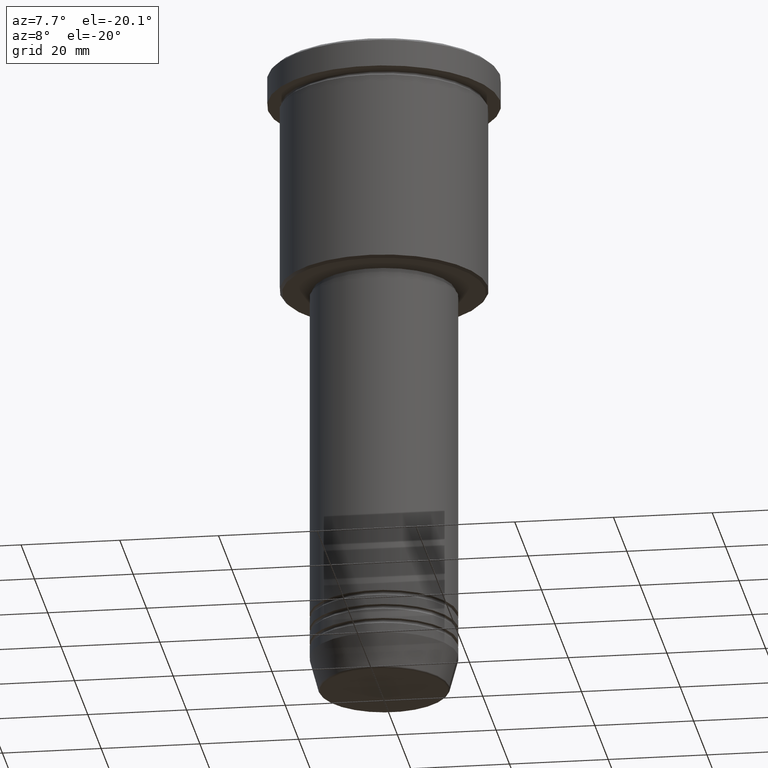
[diagram: clean part render]
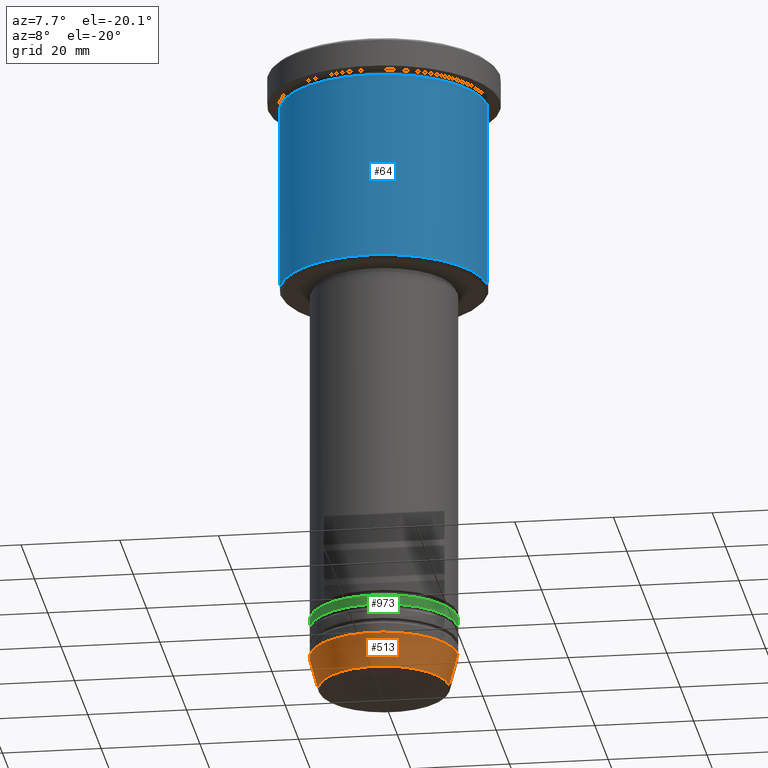
[diagram: same view with three faces highlighted in distinct colors, each labeled with its STEP entity id]
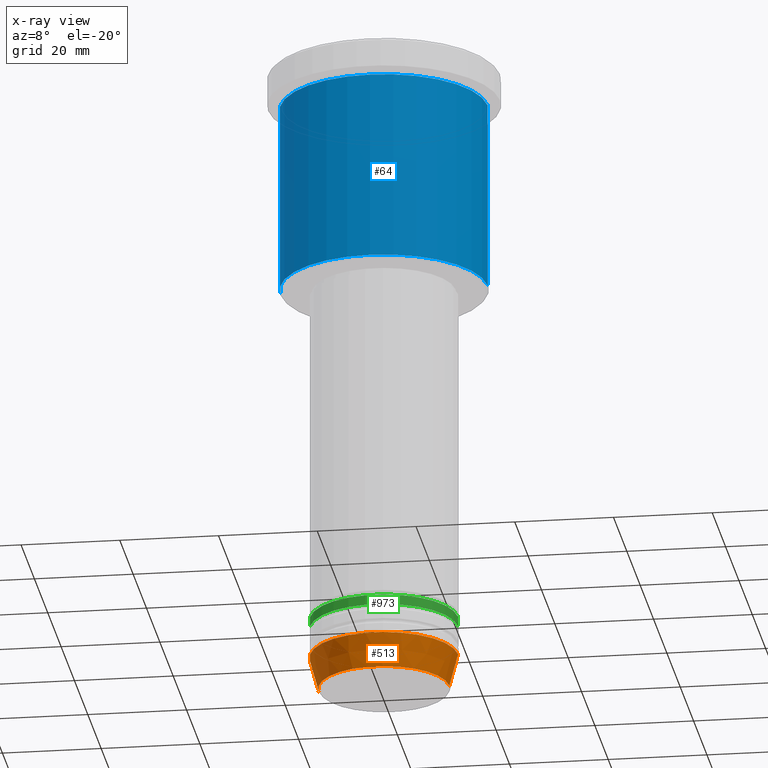
[diagram: x-ray of the same camera — body ghosted, the three highlighted faces saturated]
A machine part, auxiliary view with three faces highlighted in distinct colors.
The next image is the same camera in x-ray (body ghosted, the three faces saturated) — at least one of them is partly hidden behind the body in this view.
Their STEP definitions:

[orange] entity #513 — the highlighted conical surface has half-angle 15 deg.
#21 = VECTOR ( 'NONE', #989, 1000.000000000000000 ) ;
#26 = DIRECTION ( 'NONE',  ( 1.000000000000000000, 0.000000000000000000, 0.000000000000000000 ) ) ;
#32 = DIRECTION ( 'NONE',  ( -0.000000000000000000, -0.000000000000000000, 1.000000000000000000 ) ) ;
#72 = ORIENTED_EDGE ( 'NONE', *, *, #749, .T. ) ;
#112 = DIRECTION ( 'NONE',  ( 1.000000000000000000, 0.000000000000000000, 0.000000000000000000 ) ) ;
#117 = EDGE_CURVE ( 'NONE', #461, #815, #1161, .T. ) ;
#155 = AXIS2_PLACEMENT_3D ( 'NONE', #266, #741, #825 ) ;
#266 = CARTESIAN_POINT ( 'NONE',  ( 0.000000000000000000, 0.000000000000000000, -124.0000000000000000 ) ) ;
#268 = ORIENTED_EDGE ( 'NONE', *, *, #302, .F. ) ;
#298 = EDGE_CURVE ( 'NONE', #753, #450, #1099, .T. ) ;
#302 = EDGE_CURVE ( 'NONE', #815, #450, #405, .T. ) ;
#396 = ORIENTED_EDGE ( 'NONE', *, *, #298, .T. ) ;
#405 = CIRCLE ( 'NONE', #155, 15.00000000000000000 ) ;
#450 = VERTEX_POINT ( 'NONE', #674 ) ;
#461 = VERTEX_POINT ( 'NONE', #1108 ) ;
#472 = CARTESIAN_POINT ( 'NONE',  ( 15.00000000000000000, 0.000000000000000000, -124.0000000000000000 ) ) ;
#513 = ADVANCED_FACE ( 'NONE', ( #766 ), #915, .T. ) ;
#627 = AXIS2_PLACEMENT_3D ( 'NONE', #665, #861, #26 ) ;
#629 = EDGE_LOOP ( 'NONE', ( #850, #72, #396, #268 ) ) ;
#646 = CIRCLE ( 'NONE', #627, 13.22365507213719305 ) ;
#658 = DIRECTION ( 'NONE',  ( 0.2588190451025213501, 0.000000000000000000, 0.9659258262890680902 ) ) ;
#665 = CARTESIAN_POINT ( 'NONE',  ( 0.000000000000000000, 0.000000000000000000, -130.6294095225512422 ) ) ;
#674 = CARTESIAN_POINT ( 'NONE',  ( 15.00000000000000000, 0.000000000000000000, -124.0000000000000000 ) ) ;
#685 = CARTESIAN_POINT ( 'NONE',  ( 0.000000000000000000, 0.000000000000000000, -124.0000000000000000 ) ) ;
#741 = DIRECTION ( 'NONE',  ( -0.000000000000000000, -0.000000000000000000, 1.000000000000000000 ) ) ;
#749 = EDGE_CURVE ( 'NONE', #461, #753, #646, .T. ) ;
#753 = VERTEX_POINT ( 'NONE', #1029 ) ;
#766 = FACE_OUTER_BOUND ( 'NONE', #629, .T. ) ;
#815 = VERTEX_POINT ( 'NONE', #1127 ) ;
#825 = DIRECTION ( 'NONE',  ( 1.000000000000000000, 0.000000000000000000, 0.000000000000000000 ) ) ;
#850 = ORIENTED_EDGE ( 'NONE', *, *, #117, .F. ) ;
#861 = DIRECTION ( 'NONE',  ( -0.000000000000000000, -0.000000000000000000, 1.000000000000000000 ) ) ;
#915 = CONICAL_SURFACE ( 'NONE', #1090, 15.00000000000000000, 0.2617993877991500740 ) ;
#989 = DIRECTION ( 'NONE',  ( -0.2588190451025213501, 3.169619151431772337E-17, 0.9659258262890680902 ) ) ;
#1029 = CARTESIAN_POINT ( 'NONE',  ( 13.22365507213719305, 0.000000000000000000, -130.6294095225512422 ) ) ;
#1090 = AXIS2_PLACEMENT_3D ( 'NONE', #685, #32, #112 ) ;
#1099 = LINE ( 'NONE', #472, #1124 ) ;
#1108 = CARTESIAN_POINT ( 'NONE',  ( -13.22365507213719305, 1.728200442216588386E-15, -130.6294095225512422 ) ) ;
#1124 = VECTOR ( 'NONE', #658, 1000.000000000000000 ) ;
#1127 = CARTESIAN_POINT ( 'NONE',  ( -15.00000000000000000, 1.836970198721029589E-15, -124.0000000000000000 ) ) ;
#1140 = CARTESIAN_POINT ( 'NONE',  ( -15.00000000000000000, 1.836970198721029589E-15, -124.0000000000000000 ) ) ;
#1161 = LINE ( 'NONE', #1140, #21 ) ;

[blue] entity #64 — the highlighted cylindrical surface (partial cylindrical patch) has radius 21 mm, axis along (-0, -0, 1).
#15 = EDGE_CURVE ( 'NONE', #824, #1128, #777, .T. ) ;
#28 = DIRECTION ( 'NONE',  ( -0.000000000000000000, -0.000000000000000000, 1.000000000000000000 ) ) ;
#35 = ORIENTED_EDGE ( 'NONE', *, *, #15, .F. ) ;
#46 = ORIENTED_EDGE ( 'NONE', *, *, #1066, .F. ) ;
#64 = ADVANCED_FACE ( 'NONE', ( #775 ), #1040, .T. ) ;
#81 = VECTOR ( 'NONE', #289, 1000.000000000000000 ) ;
#100 = DIRECTION ( 'NONE',  ( -0.000000000000000000, -0.000000000000000000, 1.000000000000000000 ) ) ;
#105 = LINE ( 'NONE', #473, #81 ) ;
#115 = AXIS2_PLACEMENT_3D ( 'NONE', #120, #28, #591 ) ;
#120 = CARTESIAN_POINT ( 'NONE',  ( 0.000000000000000000, 0.000000000000000000, 0.000000000000000000 ) ) ;
#224 = CARTESIAN_POINT ( 'NONE',  ( -21.00000000000000000, 2.571758278209441661E-15, -45.49999999999998579 ) ) ;
#243 = EDGE_CURVE ( 'NONE', #264, #1128, #1168, .T. ) ;
#264 = VERTEX_POINT ( 'NONE', #654 ) ;
#289 = DIRECTION ( 'NONE',  ( -0.000000000000000000, -0.000000000000000000, 1.000000000000000000 ) ) ;
#314 = CARTESIAN_POINT ( 'NONE',  ( 21.00000000000000000, 0.000000000000000000, -6.999999999999994671 ) ) ;
#373 = CIRCLE ( 'NONE', #1145, 21.00000000000000000 ) ;
#399 = CARTESIAN_POINT ( 'NONE',  ( 0.000000000000000000, 0.000000000000000000, -45.49999999999998579 ) ) ;
#466 = AXIS2_PLACEMENT_3D ( 'NONE', #670, #1175, #582 ) ;
#473 = CARTESIAN_POINT ( 'NONE',  ( -21.00000000000000000, 2.571758278209441661E-15, 0.000000000000000000 ) ) ;
#529 = DIRECTION ( 'NONE',  ( -1.000000000000000000, 0.000000000000000000, 0.000000000000000000 ) ) ;
#573 = EDGE_CURVE ( 'NONE', #1083, #264, #373, .T. ) ;
#582 = DIRECTION ( 'NONE',  ( 1.000000000000000000, 0.000000000000000000, 0.000000000000000000 ) ) ;
#591 = DIRECTION ( 'NONE',  ( 1.000000000000000000, 0.000000000000000000, 0.000000000000000000 ) ) ;
#598 = VECTOR ( 'NONE', #100, 1000.000000000000000 ) ;
#654 = CARTESIAN_POINT ( 'NONE',  ( 21.00000000000000000, 0.000000000000000000, -45.49999999999998579 ) ) ;
#670 = CARTESIAN_POINT ( 'NONE',  ( 0.000000000000000000, 0.000000000000000000, -6.999999999999994671 ) ) ;
#676 = CARTESIAN_POINT ( 'NONE',  ( -21.00000000000000000, 2.571758278209441661E-15, -6.999999999999994671 ) ) ;
#775 = FACE_OUTER_BOUND ( 'NONE', #1007, .T. ) ;
#777 = CIRCLE ( 'NONE', #466, 21.00000000000000000 ) ;
#824 = VERTEX_POINT ( 'NONE', #676 ) ;
#919 = ORIENTED_EDGE ( 'NONE', *, *, #573, .T. ) ;
#962 = DIRECTION ( 'NONE',  ( -0.000000000000000000, -0.000000000000000000, 1.000000000000000000 ) ) ;
#1007 = EDGE_LOOP ( 'NONE', ( #46, #919, #1081, #35 ) ) ;
#1040 = CYLINDRICAL_SURFACE ( 'NONE', #115, 21.00000000000000000 ) ;
#1066 = EDGE_CURVE ( 'NONE', #1083, #824, #105, .T. ) ;
#1081 = ORIENTED_EDGE ( 'NONE', *, *, #243, .T. ) ;
#1083 = VERTEX_POINT ( 'NONE', #224 ) ;
#1128 = VERTEX_POINT ( 'NONE', #314 ) ;
#1145 = AXIS2_PLACEMENT_3D ( 'NONE', #399, #962, #529 ) ;
#1168 = LINE ( 'NONE', #1180, #598 ) ;
#1175 = DIRECTION ( 'NONE',  ( -0.000000000000000000, -0.000000000000000000, 1.000000000000000000 ) ) ;
#1180 = CARTESIAN_POINT ( 'NONE',  ( 21.00000000000000000, 0.000000000000000000, 0.000000000000000000 ) ) ;

[green] entity #973 — the highlighted cylindrical surface (partial cylindrical patch) has radius 15 mm, axis along (-0, -0, 1).
#1 = VECTOR ( 'NONE', #948, 1000.000000000000000 ) ;
#19 = CARTESIAN_POINT ( 'NONE',  ( 0.000000000000000000, 0.000000000000000000, 0.000000000000000000 ) ) ;
#23 = CARTESIAN_POINT ( 'NONE',  ( -15.00000000000000000, 1.836970198721029589E-15, -117.9999999999999716 ) ) ;
#50 = VERTEX_POINT ( 'NONE', #223 ) ;
#71 = ORIENTED_EDGE ( 'NONE', *, *, #510, .F. ) ;
#168 = ORIENTED_EDGE ( 'NONE', *, *, #562, .T. ) ;
#199 = DIRECTION ( 'NONE',  ( 1.000000000000000000, 0.000000000000000000, 0.000000000000000000 ) ) ;
#223 = CARTESIAN_POINT ( 'NONE',  ( -15.00000000000000000, 1.836970198721029589E-15, -115.9999999999999716 ) ) ;
#281 = VERTEX_POINT ( 'NONE', #1008 ) ;
#284 = DIRECTION ( 'NONE',  ( -0.000000000000000000, -0.000000000000000000, 1.000000000000000000 ) ) ;
#297 = FACE_OUTER_BOUND ( 'NONE', #1137, .T. ) ;
#305 = CARTESIAN_POINT ( 'NONE',  ( 15.00000000000000000, 0.000000000000000000, -117.9999999999999716 ) ) ;
#315 = AXIS2_PLACEMENT_3D ( 'NONE', #19, #284, #926 ) ;
#379 = ORIENTED_EDGE ( 'NONE', *, *, #1154, .T. ) ;
#407 = CIRCLE ( 'NONE', #1073, 15.00000000000000000 ) ;
#510 = EDGE_CURVE ( 'NONE', #1071, #50, #760, .T. ) ;
#547 = CIRCLE ( 'NONE', #862, 15.00000000000000000 ) ;
#562 = EDGE_CURVE ( 'NONE', #1071, #566, #407, .T. ) ;
#566 = VERTEX_POINT ( 'NONE', #305 ) ;
#655 = CARTESIAN_POINT ( 'NONE',  ( 0.000000000000000000, 0.000000000000000000, -115.9999999999999716 ) ) ;
#668 = CARTESIAN_POINT ( 'NONE',  ( -15.00000000000000000, 1.836970198721029589E-15, 0.000000000000000000 ) ) ;
#760 = LINE ( 'NONE', #668, #1 ) ;
#862 = AXIS2_PLACEMENT_3D ( 'NONE', #655, #1004, #199 ) ;
#908 = CARTESIAN_POINT ( 'NONE',  ( 15.00000000000000000, 0.000000000000000000, 0.000000000000000000 ) ) ;
#926 = DIRECTION ( 'NONE',  ( 1.000000000000000000, 0.000000000000000000, 0.000000000000000000 ) ) ;
#948 = DIRECTION ( 'NONE',  ( -0.000000000000000000, -0.000000000000000000, 1.000000000000000000 ) ) ;
#966 = ORIENTED_EDGE ( 'NONE', *, *, #1034, .F. ) ;
#973 = ADVANCED_FACE ( 'NONE', ( #297 ), #1095, .T. ) ;
#983 = LINE ( 'NONE', #908, #1115 ) ;
#1004 = DIRECTION ( 'NONE',  ( -0.000000000000000000, -0.000000000000000000, 1.000000000000000000 ) ) ;
#1008 = CARTESIAN_POINT ( 'NONE',  ( 15.00000000000000000, 0.000000000000000000, -115.9999999999999716 ) ) ;
#1034 = EDGE_CURVE ( 'NONE', #50, #281, #547, .T. ) ;
#1038 = CARTESIAN_POINT ( 'NONE',  ( 0.000000000000000000, 0.000000000000000000, -117.9999999999999716 ) ) ;
#1071 = VERTEX_POINT ( 'NONE', #23 ) ;
#1073 = AXIS2_PLACEMENT_3D ( 'NONE', #1038, #1129, #1118 ) ;
#1095 = CYLINDRICAL_SURFACE ( 'NONE', #315, 15.00000000000000000 ) ;
#1115 = VECTOR ( 'NONE', #1156, 1000.000000000000000 ) ;
#1118 = DIRECTION ( 'NONE',  ( 1.000000000000000000, 0.000000000000000000, 0.000000000000000000 ) ) ;
#1129 = DIRECTION ( 'NONE',  ( -0.000000000000000000, -0.000000000000000000, 1.000000000000000000 ) ) ;
#1137 = EDGE_LOOP ( 'NONE', ( #71, #168, #379, #966 ) ) ;
#1154 = EDGE_CURVE ( 'NONE', #566, #281, #983, .T. ) ;
#1156 = DIRECTION ( 'NONE',  ( -0.000000000000000000, -0.000000000000000000, 1.000000000000000000 ) ) ;